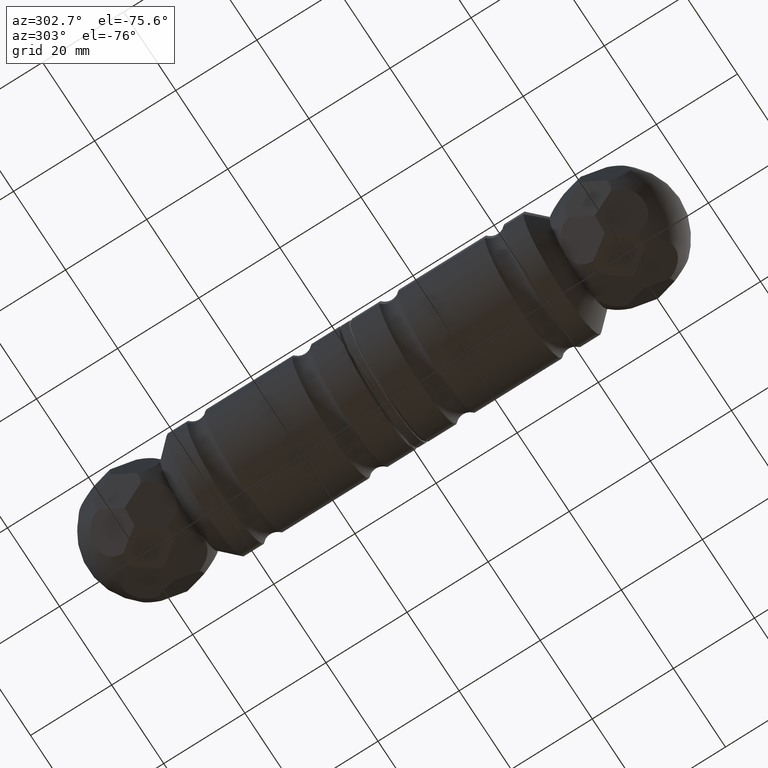
[diagram: clean part render]
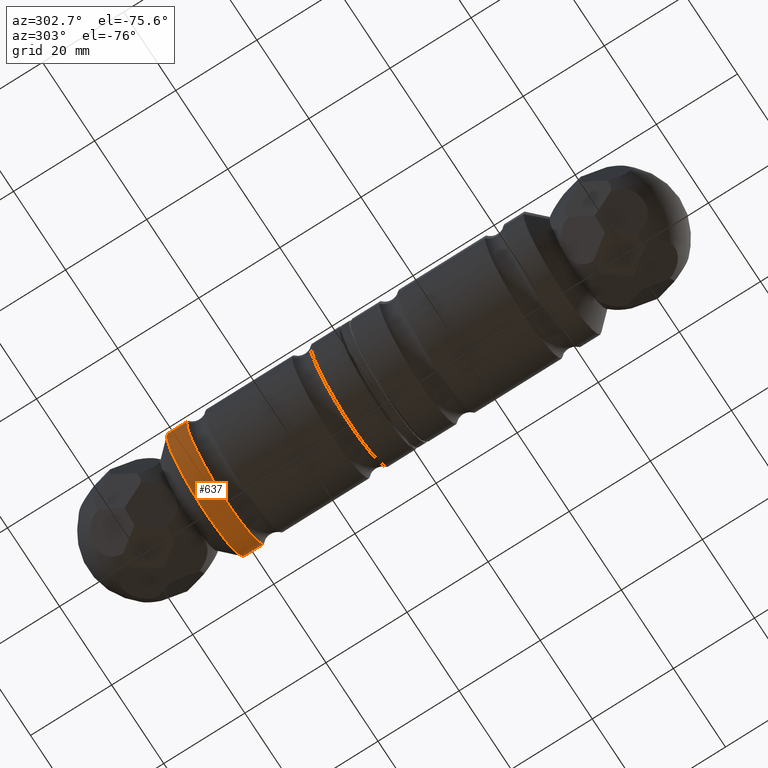
[diagram: same view with one face highlighted and labeled with its STEP entity id]
A machine part, auxiliary view. The second image highlights one B-rep face of the part: STEP entity #637.
In plain terms, the highlighted cylindrical surface (bore or boss wall) has radius 15 mm, axis along (0, -1, 0).
Its self-contained STEP definition (entity closure, byte-faithful):
#637 = ADVANCED_FACE ( 'NONE', ( #2700, #7773 ), #13294, .T. ) ;
#891 = VERTEX_POINT ( 'NONE', #9739 ) ;
#1132 = EDGE_LOOP ( 'NONE', ( #6428 ) ) ;
#2474 = EDGE_LOOP ( 'NONE', ( #2788 ) ) ;
#2700 = FACE_OUTER_BOUND ( 'NONE', #1132, .T. ) ;
#2788 = ORIENTED_EDGE ( 'NONE', *, *, #3999, .F. ) ;
#3999 = EDGE_CURVE ( 'NONE', #8432, #8432, #4800, .T. ) ;
#4376 = CARTESIAN_POINT ( 'NONE',  ( 15.00000000000000000, 38.00000000000000000, 0.000000000000000000 ) ) ;
#4800 = CIRCLE ( 'NONE', #7788, 15.00000000000000000 ) ;
#5068 = AXIS2_PLACEMENT_3D ( 'NONE', #13331, #7090, #8151 ) ;
#5571 = DIRECTION ( 'NONE',  ( 6.278969203164064121E-18, -1.000000000000000000, -0.000000000000000000 ) ) ;
#5874 = AXIS2_PLACEMENT_3D ( 'NONE', #13561, #7316, #13476 ) ;
#6428 = ORIENTED_EDGE ( 'NONE', *, *, #6721, .T. ) ;
#6721 = EDGE_CURVE ( 'NONE', #891, #891, #10185, .T. ) ;
#7090 = DIRECTION ( 'NONE',  ( 6.278969203164064121E-18, -1.000000000000000000, -0.000000000000000000 ) ) ;
#7316 = DIRECTION ( 'NONE',  ( 6.278969203164064121E-18, -1.000000000000000000, -0.000000000000000000 ) ) ;
#7773 = FACE_OUTER_BOUND ( 'NONE', #2474, .T. ) ;
#7788 = AXIS2_PLACEMENT_3D ( 'NONE', #10813, #5571, #8691 ) ;
#8151 = DIRECTION ( 'NONE',  ( 1.000000000000000000, 6.278969203164064121E-18, 0.000000000000000000 ) ) ;
#8432 = VERTEX_POINT ( 'NONE', #4376 ) ;
#8691 = DIRECTION ( 'NONE',  ( 1.000000000000000000, 0.000000000000000000, 0.000000000000000000 ) ) ;
#9739 = CARTESIAN_POINT ( 'NONE',  ( 15.00000000000000355, 43.00000000000000000, 0.000000000000000000 ) ) ;
#10185 = CIRCLE ( 'NONE', #5874, 15.00000000000000355 ) ;
#10813 = CARTESIAN_POINT ( 'NONE',  ( -2.386008297202343457E-16, 38.00000000000000000, 0.000000000000000000 ) ) ;
#13294 = CYLINDRICAL_SURFACE ( 'NONE', #5068, 15.00000000000000178 ) ;
#13331 = CARTESIAN_POINT ( 'NONE',  ( 0.000000000000000000, 0.000000000000000000, 0.000000000000000000 ) ) ;
#13476 = DIRECTION ( 'NONE',  ( 1.000000000000000000, 0.000000000000000000, 0.000000000000000000 ) ) ;
#13561 = CARTESIAN_POINT ( 'NONE',  ( -2.699956757360545453E-16, 43.00000000000000000, 0.000000000000000000 ) ) ;